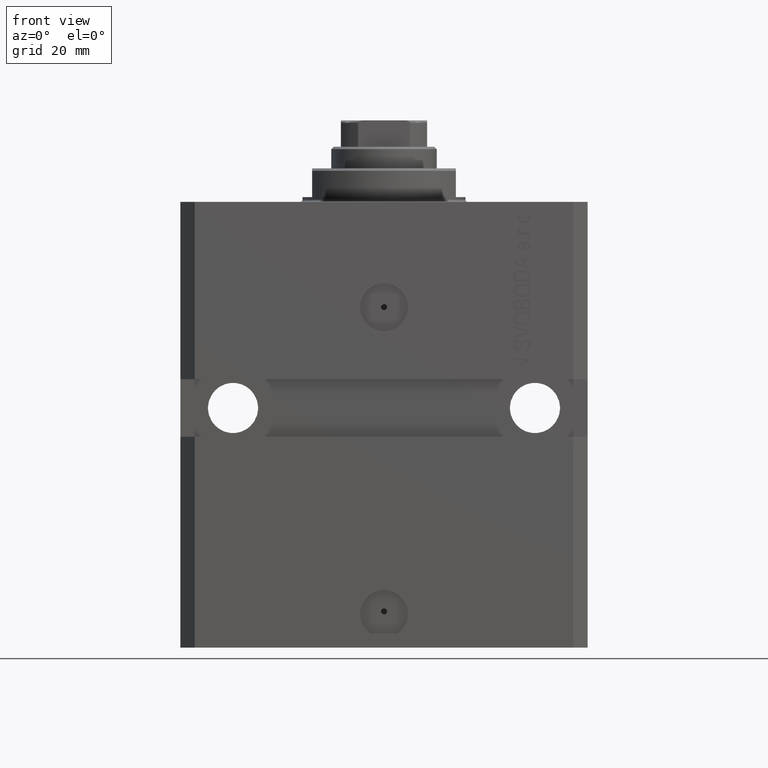
[diagram: clean part render]
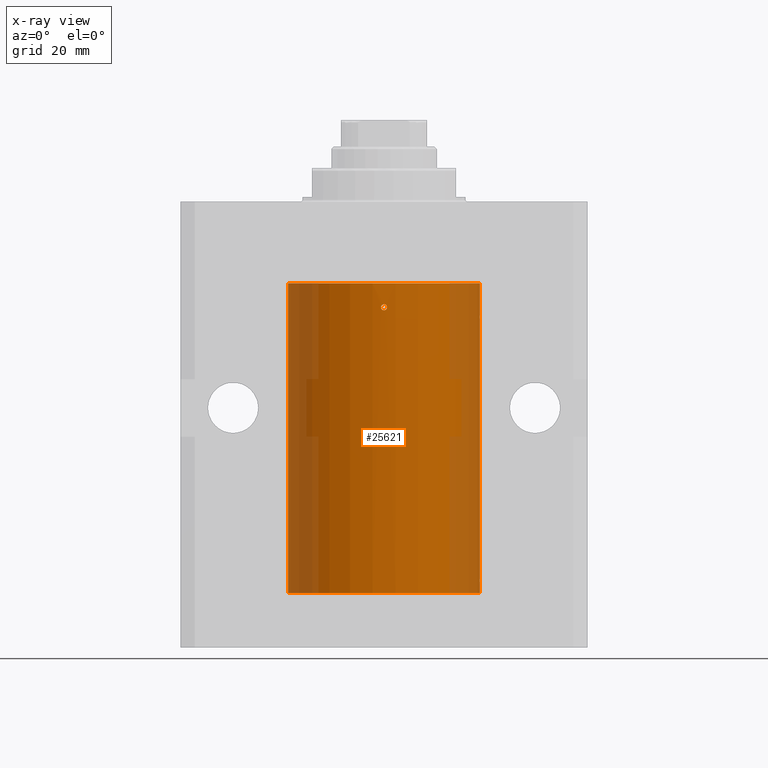
[diagram: x-ray — body ghosted, one internal face saturated and labeled with its STEP entity id]
A machine part, front view, then the same camera in x-ray: the body is ghosted and one INTERNAL B-rep face — a face not visible from any outside direction — is saturated and labeled: STEP entity #25621.
In plain terms, the highlighted cylindrical surface (partial cylindrical patch) has radius 20 mm, axis along (0, 0, 1).
Its self-contained STEP definition (entity closure, byte-faithful):
#9 = CARTESIAN_POINT ( 'NONE',  ( 19.99256494106949944, -0.5573539455062664905, -24.32646132359606383 ) ) ;
#1043 = CARTESIAN_POINT ( 'NONE',  ( -0.6250000000001382228, -19.99023198964934167, -22.16313189841578080 ) ) ;
#1184 = B_SPLINE_CURVE_WITH_KNOTS ( 'NONE', 3,
 ( #6452, #20289, #3034, #23048, #31858, #6663 ),
 .UNSPECIFIED., .F., .F.,
 ( 4, 2, 4 ),
 ( 0.001954154509844068920, 0.002442840306376431545, 0.002931526102908793736 ),
 .UNSPECIFIED. ) ;
#1620 = CARTESIAN_POINT ( 'NONE',  ( 20.00000000000000000, -0.1632180151482451602, -78.37499999999984368 ) ) ;
#1844 = CARTESIAN_POINT ( 'NONE',  ( 19.99023198964933812, -0.6250000000000827116, -79.00000000000000000 ) ) ;
#1901 = CARTESIAN_POINT ( 'NONE',  ( 20.00000000000000000, 0.000000000000000000, -81.59999999999999432 ) ) ;
#2115 = VECTOR ( 'NONE', #10569, 1000.000000000000000 ) ;
#2751 = CARTESIAN_POINT ( 'NONE',  ( 19.99766246719553209, -0.3267907458473861548, -24.55716086079691962 ) ) ;
#2797 = EDGE_CURVE ( 'NONE', #17627, #18109, #6720, .T. ) ;
#3034 = CARTESIAN_POINT ( 'NONE',  ( 19.99766790699044350, -0.3264769477312325918, -23.44266063830005464 ) ) ;
#3181 = CARTESIAN_POINT ( 'NONE',  ( 20.00000000000000000, 1.042771508482559297E-15, -24.62500000000000000 ) ) ;
#4236 = CARTESIAN_POINT ( 'NONE',  ( 0.1632920704146597346, -19.99999818881353164, -21.37505795797077823 ) ) ;
#4680 = CARTESIAN_POINT ( 'NONE',  ( -0.3251162203622516289, -19.99769811469285230, -21.44128795971509405 ) ) ;
#4862 = AXIS2_PLACEMENT_3D ( 'NONE', #19471, #15600, #29229 ) ;
#4988 = CARTESIAN_POINT ( 'NONE',  ( 19.99766246719553209, -0.3267907458473873761, -79.55716086079694094 ) ) ;
#5486 = AXIS2_PLACEMENT_3D ( 'NONE', #6263, #16693, #19880 ) ;
#6155 = CARTESIAN_POINT ( 'NONE',  ( 19.99023198964934167, -0.6250000000000760503, -24.16479419982727705 ) ) ;
#6263 = CARTESIAN_POINT ( 'NONE',  ( 0.000000000000000000, 0.000000000000000000, -81.59999999999999432 ) ) ;
#6377 = CARTESIAN_POINT ( 'NONE',  ( 19.99023198964934167, -0.6250000000000761613, -24.00000000000000000 ) ) ;
#6452 = CARTESIAN_POINT ( 'NONE',  ( 20.00000000000010303, 3.555666340528858977E-13, -23.37499999999667111 ) ) ;
#6514 = VERTEX_POINT ( 'NONE', #35442 ) ;
#6663 = CARTESIAN_POINT ( 'NONE',  ( 19.99023198964934167, -0.6250000000000761613, -24.00000000000000000 ) ) ;
#6720 = B_SPLINE_CURVE_WITH_KNOTS ( 'NONE', 3,
 ( #38952, #1043, #11936, #14883, #11712, #25794, #39848, #39625, #8085, #18517 ),
 .UNSPECIFIED., .F., .F.,
 ( 4, 2, 2, 2, 4 ),
 ( 0.001954154506134463815, 0.002442582461700956980, 0.002931010417267450145, 0.003419438372833943311, 0.003907866328400436476 ),
 .UNSPECIFIED. ) ;
#6851 = ORIENTED_EDGE ( 'NONE', *, *, #2797, .T. ) ;
#7254 = CARTESIAN_POINT ( 'NONE',  ( 20.00000000000010303, 3.555666352936568165E-13, -78.37499999999667466 ) ) ;
#7865 = CARTESIAN_POINT ( 'NONE',  ( 0.6087363597162602780, -19.99075850180857117, -21.83635608258754957 ) ) ;
#8085 = CARTESIAN_POINT ( 'NONE',  ( 0.6250000000000026645, -19.99023198964934522, -22.16515421183406076 ) ) ;
#8090 = CARTESIAN_POINT ( 'NONE',  ( 0.3265143537867915002, -19.99766736494331809, -21.44267231150418240 ) ) ;
#8102 = VERTEX_POINT ( 'NONE', #23391 ) ;
#8256 = LINE ( 'NONE', #1901, #42688 ) ;
#8261 = VERTEX_POINT ( 'NONE', #7254 ) ;
#8624 = CARTESIAN_POINT ( 'NONE',  ( 20.00000000000000000, -0.1650670266421430665, -79.62500000000002842 ) ) ;
#8884 = CARTESIAN_POINT ( 'NONE',  ( 19.99766790699043995, -0.3264769477312362556, -78.44266063830006885 ) ) ;
#9520 = CARTESIAN_POINT ( 'NONE',  ( 0.6250000000000026645, -19.99023198964934522, -22.00000000000000000 ) ) ;
#10271 = ORIENTED_EDGE ( 'NONE', *, *, #35850, .F. ) ;
#10342 = LINE ( 'NONE', #27809, #2115 ) ;
#10569 = DIRECTION ( 'NONE',  ( -0.000000000000000000, -0.000000000000000000, 1.000000000000000000 ) ) ;
#11562 = B_SPLINE_CURVE_WITH_KNOTS ( 'NONE', 3,
 ( #42917, #1620, #8884, #15238, #29089, #1844 ),
 .UNSPECIFIED., .F., .F.,
 ( 4, 2, 4 ),
 ( 0.001954154509844075859, 0.002442840306376440652, 0.002931526102908805446 ),
 .UNSPECIFIED. ) ;
#11712 = CARTESIAN_POINT ( 'NONE',  ( -0.1653813832397391104, -19.99999568866902067, -22.62486203736067125 ) ) ;
#11715 = CARTESIAN_POINT ( 'NONE',  ( -0.6250000000033326675, -19.99023198964924219, -21.99999999999967315 ) ) ;
#11936 = CARTESIAN_POINT ( 'NONE',  ( -0.5574110886242996665, -19.99256263711735215, -22.32630989244538711 ) ) ;
#12014 = CARTESIAN_POINT ( 'NONE',  ( 19.99023198964934167, -0.6250000000000828226, -79.16479419982725574 ) ) ;
#12216 = B_SPLINE_CURVE_WITH_KNOTS ( 'NONE', 3,
 ( #25348, #32153, #7865, #14659, #21712, #8090, #4236, #24889, #4680, #21251, #28972, #11715 ),
 .UNSPECIFIED., .F., .F.,
 ( 4, 2, 2, 2, 2, 4 ),
 ( 0.000000000000000000, 0.0002442693132668051579, 0.0004885386265336103158, 0.0009770772530672282210, 0.001465615879600846126, 0.001954154506134463815 ),
 .UNSPECIFIED. ) ;
#12636 = ORIENTED_EDGE ( 'NONE', *, *, #39027, .T. ) ;
#14155 = VERTEX_POINT ( 'NONE', #14520 ) ;
#14520 = CARTESIAN_POINT ( 'NONE',  ( 19.99023198964933812, -0.6250000000000827116, -79.00000000000000000 ) ) ;
#14659 = CARTESIAN_POINT ( 'NONE',  ( 0.5459793025363884889, -19.99257092108152634, -21.68496684531850249 ) ) ;
#14737 = CARTESIAN_POINT ( 'NONE',  ( 19.99256494106949944, -0.5573539455062719306, -79.32646132359609226 ) ) ;
#14883 = CARTESIAN_POINT ( 'NONE',  ( -0.3270944962368909081, -19.99765679051705902, -22.55695103748945129 ) ) ;
#15238 = CARTESIAN_POINT ( 'NONE',  ( 19.99257096259849931, -0.5571491910957669935, -78.67319862246098694 ) ) ;
#15384 = EDGE_CURVE ( 'NONE', #33260, #8102, #22696, .T. ) ;
#15600 = DIRECTION ( 'NONE',  ( 0.000000000000000000, 0.000000000000000000, 1.000000000000000000 ) ) ;
#15881 = B_SPLINE_CURVE_WITH_KNOTS ( 'NONE', 3,
 ( #6377, #6155, #9, #2751, #30449, #3181 ),
 .UNSPECIFIED., .F., .F.,
 ( 4, 2, 4 ),
 ( 0.002931526102908793736, 0.003419696219975619598, 0.003907866337042445459 ),
 .UNSPECIFIED. ) ;
#16404 = VECTOR ( 'NONE', #26323, 1000.000000000000000 ) ;
#16658 = FACE_OUTER_BOUND ( 'NONE', #43084, .T. ) ;
#16693 = DIRECTION ( 'NONE',  ( 0.000000000000000000, 0.000000000000000000, 1.000000000000000000 ) ) ;
#17627 = VERTEX_POINT ( 'NONE', #27976 ) ;
#18109 = VERTEX_POINT ( 'NONE', #9520 ) ;
#18517 = CARTESIAN_POINT ( 'NONE',  ( 0.6250000000000026645, -19.99023198964934522, -22.00000000000000000 ) ) ;
#19128 = ORIENTED_EDGE ( 'NONE', *, *, #23916, .T. ) ;
#19410 = CARTESIAN_POINT ( 'NONE',  ( -20.00000000000000000, 2.449293598294706513E-15, -81.59999999999999432 ) ) ;
#19471 = CARTESIAN_POINT ( 'NONE',  ( 0.000000000000000000, 0.000000000000000000, -17.00000000000000000 ) ) ;
#19549 = VERTEX_POINT ( 'NONE', #35548 ) ;
#19880 = DIRECTION ( 'NONE',  ( 1.000000000000000000, 0.000000000000000000, 0.000000000000000000 ) ) ;
#20289 = CARTESIAN_POINT ( 'NONE',  ( 20.00000000000000355, -0.1632180151482444386, -23.37499999999983658 ) ) ;
#21149 = ORIENTED_EDGE ( 'NONE', *, *, #44575, .F. ) ;
#21251 = CARTESIAN_POINT ( 'NONE',  ( -0.5585582113630487289, -19.99253968778482360, -21.67461956847272830 ) ) ;
#21265 = ORIENTED_EDGE ( 'NONE', *, *, #36939, .T. ) ;
#21712 = CARTESIAN_POINT ( 'NONE',  ( 0.4995363768272698679, -19.99384383563509360, -21.61563220462100432 ) ) ;
#22412 = AXIS2_PLACEMENT_3D ( 'NONE', #22818, #34136, #37538 ) ;
#22574 = ORIENTED_EDGE ( 'NONE', *, *, #42098, .T. ) ;
#22696 = LINE ( 'NONE', #25651, #16404 ) ;
#22818 = CARTESIAN_POINT ( 'NONE',  ( 0.000000000000000000, 0.000000000000000000, -81.59999999999999432 ) ) ;
#23048 = CARTESIAN_POINT ( 'NONE',  ( 19.99257096259850286, -0.5571491910957592220, -23.67319862246101181 ) ) ;
#23391 = CARTESIAN_POINT ( 'NONE',  ( 20.00000000000000000, -4.058908006348821872E-15, -79.62500000000000000 ) ) ;
#23916 = EDGE_CURVE ( 'NONE', #18109, #17627, #12216, .T. ) ;
#24417 = EDGE_CURVE ( 'NONE', #8261, #19549, #8256, .T. ) ;
#24622 = EDGE_CURVE ( 'NONE', #8261, #14155, #11562, .T. ) ;
#24808 = CARTESIAN_POINT ( 'NONE',  ( -20.00000000000000000, 2.449293598294706513E-15, -17.00000000000000000 ) ) ;
#24889 = CARTESIAN_POINT ( 'NONE',  ( -0.1628481006860607039, -20.00000180872260813, -21.37494212087287337 ) ) ;
#25263 = CARTESIAN_POINT ( 'NONE',  ( 20.00000000000010303, 3.555666340528858977E-13, -23.37499999999667111 ) ) ;
#25348 = CARTESIAN_POINT ( 'NONE',  ( 0.6250000000000026645, -19.99023198964934522, -22.00000000000000000 ) ) ;
#25621 = ADVANCED_FACE ( 'NONE', ( #37098, #16658 ), #26890, .F. ) ;
#25651 = CARTESIAN_POINT ( 'NONE',  ( 20.00000000000000000, 0.000000000000000000, -81.59999999999999432 ) ) ;
#25676 = EDGE_CURVE ( 'NONE', #36272, #34603, #1184, .T. ) ;
#25794 = CARTESIAN_POINT ( 'NONE',  ( 0.1643369734423495987, -20.00000429769607280, -22.62513752632251851 ) ) ;
#25967 = VECTOR ( 'NONE', #44319, 1000.000000000000000 ) ;
#26270 = ORIENTED_EDGE ( 'NONE', *, *, #24622, .T. ) ;
#26323 = DIRECTION ( 'NONE',  ( -0.000000000000000000, -0.000000000000000000, 1.000000000000000000 ) ) ;
#26890 = CYLINDRICAL_SURFACE ( 'NONE', #22412, 20.00000000000000000 ) ;
#27809 = CARTESIAN_POINT ( 'NONE',  ( 20.00000000000000000, 0.000000000000000000, -81.59999999999999432 ) ) ;
#27976 = CARTESIAN_POINT ( 'NONE',  ( -0.6250000000033326675, -19.99023198964924219, -21.99999999999967315 ) ) ;
#28972 = CARTESIAN_POINT ( 'NONE',  ( -0.6249999999998574474, -19.99023198964934878, -21.83683113816865529 ) ) ;
#29089 = CARTESIAN_POINT ( 'NONE',  ( 19.99023198964933812, -0.6250000000000828226, -78.83503171949485022 ) ) ;
#29229 = DIRECTION ( 'NONE',  ( 1.000000000000000000, 0.000000000000000000, 0.000000000000000000 ) ) ;
#29362 = DIRECTION ( 'NONE',  ( -0.000000000000000000, -0.000000000000000000, 1.000000000000000000 ) ) ;
#30449 = CARTESIAN_POINT ( 'NONE',  ( 20.00000000000000000, -0.1650670266421440102, -24.62500000000002487 ) ) ;
#30475 = B_SPLINE_CURVE_WITH_KNOTS ( 'NONE', 3,
 ( #43094, #12014, #14737, #4988, #8624, #39255 ),
 .UNSPECIFIED., .F., .F.,
 ( 4, 2, 4 ),
 ( 0.002931526102908805446, 0.003419696219975630440, 0.003907866337042455000 ),
 .UNSPECIFIED. ) ;
#31220 = ORIENTED_EDGE ( 'NONE', *, *, #33501, .T. ) ;
#31576 = CARTESIAN_POINT ( 'NONE',  ( -20.00000000000000000, 2.449293598294706513E-15, -81.59999999999999432 ) ) ;
#31858 = CARTESIAN_POINT ( 'NONE',  ( 19.99023198964933457, -0.6250000000000760503, -23.83503171949486443 ) ) ;
#32153 = CARTESIAN_POINT ( 'NONE',  ( 0.6250000000000028866, -19.99023198964935233, -21.91740418326171280 ) ) ;
#33034 = LINE ( 'NONE', #19410, #25967 ) ;
#33260 = VERTEX_POINT ( 'NONE', #43814 ) ;
#33501 = EDGE_CURVE ( 'NONE', #14155, #8102, #30475, .T. ) ;
#34136 = DIRECTION ( 'NONE',  ( -0.000000000000000000, -0.000000000000000000, 1.000000000000000000 ) ) ;
#34382 = ORIENTED_EDGE ( 'NONE', *, *, #24417, .F. ) ;
#34603 = VERTEX_POINT ( 'NONE', #39464 ) ;
#35053 = EDGE_LOOP ( 'NONE', ( #19128, #6851 ) ) ;
#35188 = CIRCLE ( 'NONE', #5486, 20.00000000000000000 ) ;
#35442 = CARTESIAN_POINT ( 'NONE',  ( 20.00000000000000000, 0.000000000000000000, -17.00000000000000000 ) ) ;
#35548 = CARTESIAN_POINT ( 'NONE',  ( 20.00000000000000000, 1.042771508482559297E-15, -24.62500000000000000 ) ) ;
#35850 = EDGE_CURVE ( 'NONE', #43353, #33260, #35188, .T. ) ;
#36272 = VERTEX_POINT ( 'NONE', #25263 ) ;
#36629 = ORIENTED_EDGE ( 'NONE', *, *, #25676, .T. ) ;
#36939 = EDGE_CURVE ( 'NONE', #34603, #19549, #15881, .T. ) ;
#37098 = FACE_BOUND ( 'NONE', #35053, .T. ) ;
#37538 = DIRECTION ( 'NONE',  ( 1.000000000000000000, 0.000000000000000000, 0.000000000000000000 ) ) ;
#38547 = ORIENTED_EDGE ( 'NONE', *, *, #15384, .F. ) ;
#38952 = CARTESIAN_POINT ( 'NONE',  ( -0.6250000000033326675, -19.99023198964924219, -21.99999999999967315 ) ) ;
#39027 = EDGE_CURVE ( 'NONE', #42280, #6514, #41786, .T. ) ;
#39255 = CARTESIAN_POINT ( 'NONE',  ( 20.00000000000000000, -4.058908006348821872E-15, -79.62500000000000000 ) ) ;
#39464 = CARTESIAN_POINT ( 'NONE',  ( 19.99023198964934167, -0.6250000000000761613, -24.00000000000000000 ) ) ;
#39625 = CARTESIAN_POINT ( 'NONE',  ( 0.5570899181683264256, -19.99257333899569744, -22.32695694742785619 ) ) ;
#39848 = CARTESIAN_POINT ( 'NONE',  ( 0.3261666526553446133, -19.99767369487616264, -22.55755299038902706 ) ) ;
#41786 = CIRCLE ( 'NONE', #4862, 20.00000000000000000 ) ;
#42098 = EDGE_CURVE ( 'NONE', #43353, #42280, #33034, .T. ) ;
#42280 = VERTEX_POINT ( 'NONE', #24808 ) ;
#42688 = VECTOR ( 'NONE', #29362, 1000.000000000000000 ) ;
#42917 = CARTESIAN_POINT ( 'NONE',  ( 20.00000000000010303, 3.555666352936568165E-13, -78.37499999999667466 ) ) ;
#43084 = EDGE_LOOP ( 'NONE', ( #10271, #22574, #12636, #21149, #36629, #21265, #34382, #26270, #31220, #38547 ) ) ;
#43094 = CARTESIAN_POINT ( 'NONE',  ( 19.99023198964933812, -0.6250000000000827116, -79.00000000000000000 ) ) ;
#43353 = VERTEX_POINT ( 'NONE', #31576 ) ;
#43814 = CARTESIAN_POINT ( 'NONE',  ( 20.00000000000000000, 0.000000000000000000, -81.59999999999999432 ) ) ;
#44319 = DIRECTION ( 'NONE',  ( -0.000000000000000000, -0.000000000000000000, 1.000000000000000000 ) ) ;
#44575 = EDGE_CURVE ( 'NONE', #36272, #6514, #10342, .T. ) ;